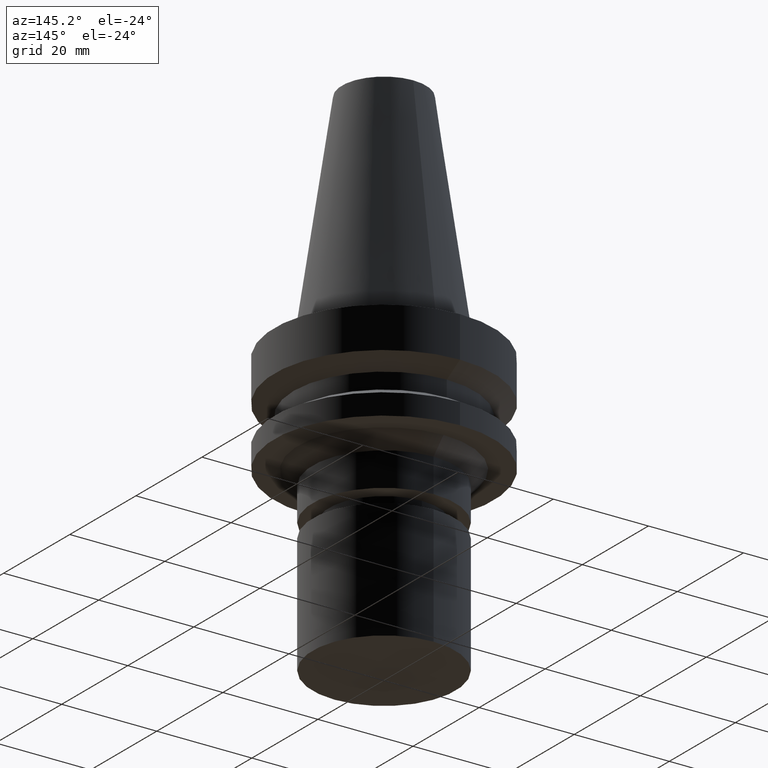
[diagram: clean part render]
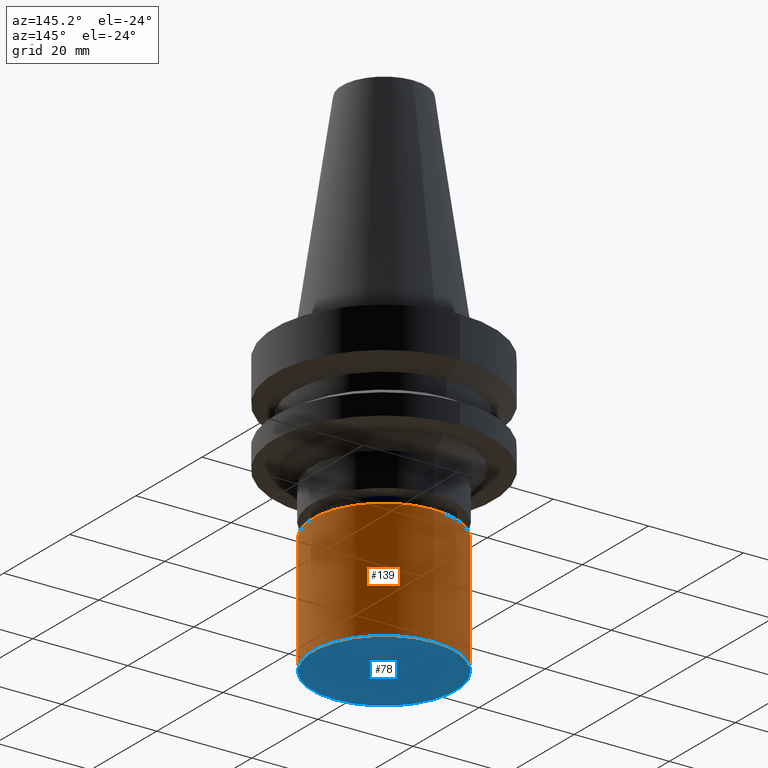
[diagram: same view with the hole feature highlighted: cylindrical wall and planar end face, labeled with their STEP entity ids]
A machine part, auxiliary view. The highlighted faces form one hole feature of diameter 30 mm: the cylindrical wall (entity #139, orange) and its adjacent planar end face (entity #78, blue) — they share a circular edge in the B-rep.
Wall:
#83=EDGE_CURVE('Unnamed[1]',#213,#213,#214,.T.);
#91=EDGE_CURVE('Unnamed[1]',#225,#225,#226,.T.);
#139=ADVANCED_FACE('Unnamed[1]',(#295,#296),#297,.T.);
#213=VERTEX_POINT('',#392);
#214=CIRCLE('',#393,15.0);
#225=VERTEX_POINT('',#408);
#226=CIRCLE('',#409,15.0000000000001);
#295=FACE_BOUND('',#494,.T.);
#296=FACE_BOUND('',#495,.T.);
#297=CYLINDRICAL_SURFACE('',#496,15.0);
#392=CARTESIAN_POINT('',(3.67394039744206E-015,15.0,-60.0));
#393=AXIS2_PLACEMENT_3D('',#594,#595,#596);
#408=CARTESIAN_POINT('',(2.14313189850787E-015,15.0000000000001,-35.0));
#409=AXIS2_PLACEMENT_3D('',#606,#607,#608);
#494=EDGE_LOOP('',(#681));
#495=EDGE_LOOP('',(#682));
#496=AXIS2_PLACEMENT_3D('',#683,#684,#685);
#594=CARTESIAN_POINT('',(3.67394039744206E-015,7.34788079488412E-015,-60.0));
#595=DIRECTION('',(6.12323399573677E-017,1.22464679914735E-016,-1.0));
#596=DIRECTION('',(-1.23259516440783E-032,1.0,1.22464679914735E-016));
#606=CARTESIAN_POINT('',(2.14313189850787E-015,4.28626379701574E-015,-35.0));
#607=DIRECTION('',(6.12323399573677E-017,1.22464679914735E-016,-1.0));
#608=DIRECTION('',(-1.23259516440783E-032,1.0,1.22464679914735E-016));
#681=ORIENTED_EDGE('',*,*,#83,.F.);
#682=ORIENTED_EDGE('',*,*,#91,.T.);
#683=CARTESIAN_POINT('',(2.90853614797497E-015,5.81707229594993E-015,-47.5));
#684=DIRECTION('',(6.12323399573677E-017,1.22464679914735E-016,-1.0));
#685=DIRECTION('',(-1.23259516440783E-032,1.0,1.22464679914735E-016));
End face:
#78=ADVANCED_FACE('Unnamed[1]',(#205),#206,.T.);
#83=EDGE_CURVE('Unnamed[1]',#213,#213,#214,.T.);
#205=FACE_OUTER_BOUND('',#382,.T.);
#206=PLANE('',#383);
#213=VERTEX_POINT('',#392);
#214=CIRCLE('',#393,15.0);
#382=EDGE_LOOP('',(#584));
#383=AXIS2_PLACEMENT_3D('',#585,#586,#587);
#392=CARTESIAN_POINT('',(3.67394039744206E-015,15.0,-60.0));
#393=AXIS2_PLACEMENT_3D('',#594,#595,#596);
#584=ORIENTED_EDGE('',*,*,#83,.T.);
#585=CARTESIAN_POINT('',(3.67394039744206E-015,7.50000000000001,-60.0));
#586=DIRECTION('',(6.12323399573677E-017,1.22464679914735E-016,-1.0));
#587=DIRECTION('',(-1.23259516440783E-032,1.0,1.22464679914735E-016));
#594=CARTESIAN_POINT('',(3.67394039744206E-015,7.34788079488412E-015,-60.0));
#595=DIRECTION('',(6.12323399573677E-017,1.22464679914735E-016,-1.0));
#596=DIRECTION('',(-1.23259516440783E-032,1.0,1.22464679914735E-016));